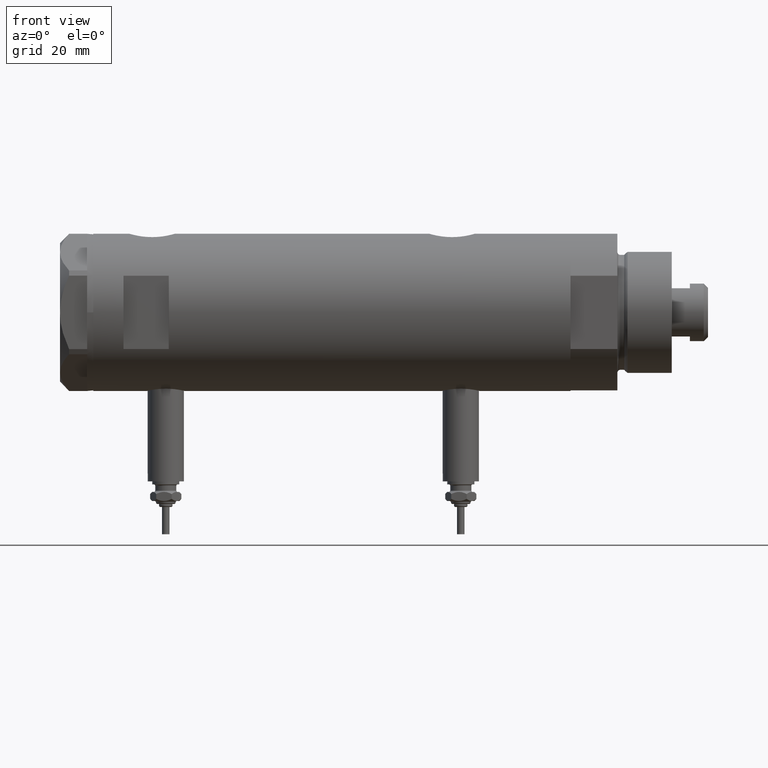
[diagram: clean part render]
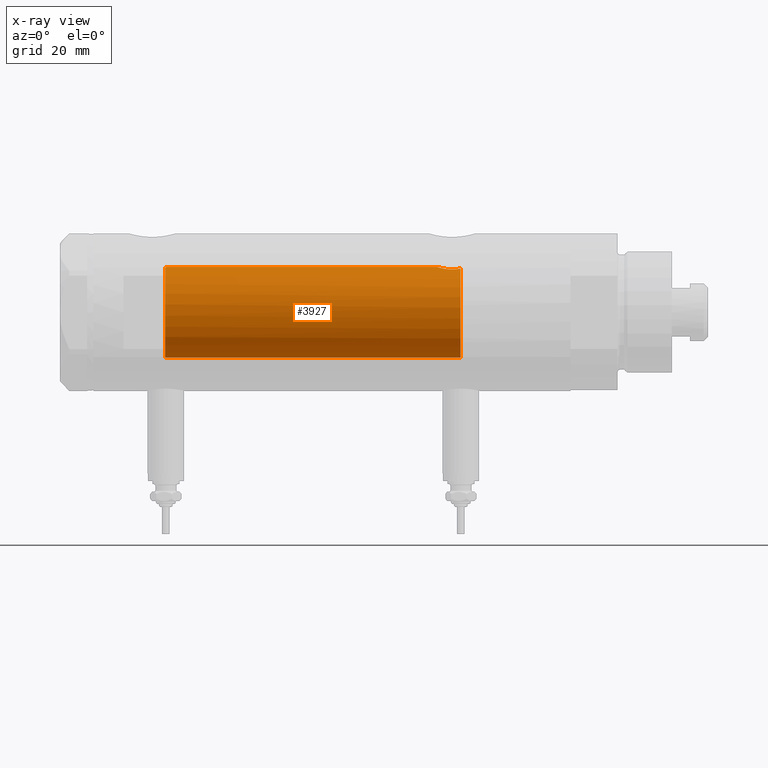
[diagram: x-ray — body ghosted, one internal face saturated and labeled with its STEP entity id]
A machine part, front view, then the same camera in x-ray: the body is ghosted and one INTERNAL B-rep face — a face not visible from any outside direction — is saturated and labeled: STEP entity #3927.
In plain terms, the highlighted cylindrical surface (partial cylindrical patch) has radius 15 mm, axis along (1, 0, -0).
Its self-contained STEP definition (entity closure, byte-faithful):
#87 = LINE ( 'NONE', #4946, #2174 ) ;
#161 = CARTESIAN_POINT ( 'NONE',  ( 14.30602371879161439, -4.510400617436904014, -41.58665028800272268 ) ) ;
#193 = CARTESIAN_POINT ( 'NONE',  ( 15.00000000000000000, -0.2216692655473431750, -34.88499999999999091 ) ) ;
#358 = CARTESIAN_POINT ( 'NONE',  ( -15.00000000000000000, 0.000000000000000000, 55.15000000000000568 ) ) ;
#454 = CARTESIAN_POINT ( 'NONE',  ( 0.000000000000000000, 0.000000000000000000, 55.15000000000000568 ) ) ;
#640 = CARTESIAN_POINT ( 'NONE',  ( 14.82638779339053947, -2.275571356824482638, 55.15000000000000568 ) ) ;
#651 = CARTESIAN_POINT ( 'NONE',  ( 14.72015646623405871, -2.909233045280601893, -35.82572079632733164 ) ) ;
#735 = VECTOR ( 'NONE', #5012, 1000.000000000000000 ) ;
#740 = CARTESIAN_POINT ( 'NONE',  ( 14.30772250772359833, -4.505024017690383076, -37.90010806953218037 ) ) ;
#1015 = ORIENTED_EDGE ( 'NONE', *, *, #5824, .F. ) ;
#1092 = CARTESIAN_POINT ( 'NONE',  ( 14.33349657381506681, -4.422893686125041413, -41.78827841538883092 ) ) ;
#1183 = CARTESIAN_POINT ( 'NONE',  ( 14.93900636919599911, -1.364886281976677607, 54.77622504971313333 ) ) ;
#1243 = AXIS2_PLACEMENT_3D ( 'NONE', #5477, #4522, #2089 ) ;
#1402 = VERTEX_POINT ( 'NONE', #3177 ) ;
#1564 = B_SPLINE_CURVE_WITH_KNOTS ( 'NONE', 3,
 ( #3548, #6079, #1696, #1092, #161, #3103, #1631, #3645, #3132, #1566, #4470, #3160, #3619, #5593, #4029, #740, #4093, #2618, #5978, #4572, #651, #2589, #1596, #3585, #5949, #6047, #5499, #5567, #193, #4506 ),
 .UNSPECIFIED., .F., .F.,
 ( 4, 2, 2, 2, 2, 2, 2, 2, 2, 2, 2, 2, 2, 2, 4 ),
 ( 0.004672505804584289359, 0.005337629501999303222, 0.006002753199414317953, 0.006667876896829330949, 0.007333000594244345680, 0.007998124291659358676, 0.008663247989074373406, 0.009328371686489388137, 0.009993495383904402868, 0.01132374277873441151, 0.01265399017356442016, 0.01331911387097942448, 0.01398423756839442880, 0.01464936126580943312, 0.01531448496322443745 ),
 .UNSPECIFIED. ) ;
#1566 = CARTESIAN_POINT ( 'NONE',  ( 14.18781489734108270, -4.868896704194245473, -39.85545969036063241 ) ) ;
#1590 = CARTESIAN_POINT ( 'NONE',  ( 14.85289483991917514, -2.102865829523695940, 55.05860377881607093 ) ) ;
#1596 = CARTESIAN_POINT ( 'NONE',  ( 14.84733308118440220, -2.144376633039216440, -35.37751912952715827 ) ) ;
#1631 = CARTESIAN_POINT ( 'NONE',  ( 14.23846660849503465, -4.718934182878722794, -40.95401121469808459 ) ) ;
#1641 = AXIS2_PLACEMENT_3D ( 'NONE', #3816, #2851, #1835 ) ;
#1696 = CARTESIAN_POINT ( 'NONE',  ( 14.39424372609267877, -4.221002267729138779, -42.17893131093288872 ) ) ;
#1756 = ORIENTED_EDGE ( 'NONE', *, *, #2279, .T. ) ;
#1820 = EDGE_LOOP ( 'NONE', ( #1015, #2955, #4494, #2489, #4662, #1756 ) ) ;
#1835 = DIRECTION ( 'NONE',  ( -1.000000000000000000, 0.000000000000000000, 0.000000000000000000 ) ) ;
#1860 = DIRECTION ( 'NONE',  ( 0.000000000000000000, 0.000000000000000000, 1.000000000000000000 ) ) ;
#2005 = VERTEX_POINT ( 'NONE', #5367 ) ;
#2037 = DIRECTION ( 'NONE',  ( -0.000000000000000000, -0.000000000000000000, -1.000000000000000000 ) ) ;
#2040 = CARTESIAN_POINT ( 'NONE',  ( 15.00000000000000178, -0.3999014018875943210, 54.58500000000000796 ) ) ;
#2089 = DIRECTION ( 'NONE',  ( -1.000000000000000000, 0.000000000000000000, 0.000000000000000000 ) ) ;
#2174 = VECTOR ( 'NONE', #2037, 1000.000000000000000 ) ;
#2235 = B_SPLINE_CURVE_WITH_KNOTS ( 'NONE', 3,
 ( #2926, #2040, #5108, #1183, #4119, #2584, #1590, #640 ),
 .UNSPECIFIED., .F., .F.,
 ( 4, 2, 2, 4 ),
 ( 0.000000000000000000, 0.001182100180564266828, 0.001773150270846399808, 0.002364200361128533222 ),
 .UNSPECIFIED. ) ;
#2279 = EDGE_CURVE ( 'NONE', #2426, #4213, #5503, .T. ) ;
#2426 = VERTEX_POINT ( 'NONE', #358 ) ;
#2489 = ORIENTED_EDGE ( 'NONE', *, *, #4128, .T. ) ;
#2584 = CARTESIAN_POINT ( 'NONE',  ( 14.87720562886504183, -1.924385875533401347, 54.97741675737692191 ) ) ;
#2589 = CARTESIAN_POINT ( 'NONE',  ( 14.81710879718117546, -2.343063746046468054, -35.48067662538952050 ) ) ;
#2618 = CARTESIAN_POINT ( 'NONE',  ( 14.42796883436190214, -4.108435602805831088, -37.10726922759031510 ) ) ;
#2652 = CARTESIAN_POINT ( 'NONE',  ( 14.82638779339053947, -2.275571356824482638, 55.15000000000000568 ) ) ;
#2660 = CIRCLE ( 'NONE', #1243, 15.00000000000000000 ) ;
#2739 = AXIS2_PLACEMENT_3D ( 'NONE', #454, #1860, #4343 ) ;
#2813 = CARTESIAN_POINT ( 'NONE',  ( 15.00000000000000000, 0.000000000000000000, 54.58500000000000085 ) ) ;
#2851 = DIRECTION ( 'NONE',  ( -0.000000000000000000, -0.000000000000000000, -1.000000000000000000 ) ) ;
#2926 = CARTESIAN_POINT ( 'NONE',  ( 15.00000000000000000, 0.000000000000000000, 54.58500000000000085 ) ) ;
#2955 = ORIENTED_EDGE ( 'NONE', *, *, #6274, .T. ) ;
#2997 = LINE ( 'NONE', #4084, #735 ) ;
#3011 = VERTEX_POINT ( 'NONE', #2813 ) ;
#3103 = CARTESIAN_POINT ( 'NONE',  ( 14.25856516724843992, -4.658255869285516937, -41.17044016644936733 ) ) ;
#3132 = CARTESIAN_POINT ( 'NONE',  ( 14.19797987272029438, -4.839174951492910104, -40.29741451501411120 ) ) ;
#3160 = CARTESIAN_POINT ( 'NONE',  ( 14.19858338301463441, -4.837406781463696070, -39.18614104090498529 ) ) ;
#3177 = CARTESIAN_POINT ( 'NONE',  ( 14.46277203719950855, -3.978470183374506863, -42.55000000000000426 ) ) ;
#3363 = CYLINDRICAL_SURFACE ( 'NONE', #1641, 15.00000000000000000 ) ;
#3548 = CARTESIAN_POINT ( 'NONE',  ( 14.46277203719950855, -3.978470183374506863, -42.55000000000000426 ) ) ;
#3585 = CARTESIAN_POINT ( 'NONE',  ( 14.90017778876744892, -1.739641523727902372, -35.20130925695126223 ) ) ;
#3619 = CARTESIAN_POINT ( 'NONE',  ( 14.20926245015526135, -4.806160851464706063, -38.96377327795616452 ) ) ;
#3645 = CARTESIAN_POINT ( 'NONE',  ( 14.20819413761015504, -4.809312895991456394, -40.51713251522166814 ) ) ;
#3816 = CARTESIAN_POINT ( 'NONE',  ( 0.000000000000000000, 0.000000000000000000, 78.95000000000000284 ) ) ;
#3927 = ADVANCED_FACE ( 'NONE', ( #6181 ), #3363, .F. ) ;
#4029 = CARTESIAN_POINT ( 'NONE',  ( 14.25977760983849052, -4.654557688538888627, -38.31736805897653397 ) ) ;
#4084 = CARTESIAN_POINT ( 'NONE',  ( -15.00000000000000000, 0.000000000000000000, 78.95000000000000284 ) ) ;
#4093 = CARTESIAN_POINT ( 'NONE',  ( 14.33594561531104006, -4.414979644548145288, -37.69453393419243525 ) ) ;
#4119 = CARTESIAN_POINT ( 'NONE',  ( 14.92029983160078288, -1.555365312915176768, 54.83609703141411984 ) ) ;
#4128 = EDGE_CURVE ( 'NONE', #1402, #2005, #2660, .T. ) ;
#4200 = EDGE_CURVE ( 'NONE', #1402, #4650, #1564, .T. ) ;
#4213 = VERTEX_POINT ( 'NONE', #2652 ) ;
#4343 = DIRECTION ( 'NONE',  ( 1.000000000000000000, 0.000000000000000000, 0.000000000000000000 ) ) ;
#4470 = CARTESIAN_POINT ( 'NONE',  ( 14.18786347641749757, -4.868757996482117711, -39.63322300400292875 ) ) ;
#4494 = ORIENTED_EDGE ( 'NONE', *, *, #4200, .F. ) ;
#4506 = CARTESIAN_POINT ( 'NONE',  ( 15.00000000000000000, 5.959273468635536151E-16, -34.88499999999999801 ) ) ;
#4522 = DIRECTION ( 'NONE',  ( 0.000000000000000000, 0.000000000000000000, -1.000000000000000000 ) ) ;
#4564 = CARTESIAN_POINT ( 'NONE',  ( 15.00000000000000000, 5.959273468635536151E-16, -34.88499999999999801 ) ) ;
#4572 = CARTESIAN_POINT ( 'NONE',  ( 14.64727859494137263, -3.248701865452407578, -36.10174013696653361 ) ) ;
#4598 = EDGE_CURVE ( 'NONE', #2426, #2005, #2997, .T. ) ;
#4650 = VERTEX_POINT ( 'NONE', #4564 ) ;
#4662 = ORIENTED_EDGE ( 'NONE', *, *, #4598, .F. ) ;
#4946 = CARTESIAN_POINT ( 'NONE',  ( 15.00000000000000000, 1.836970198721029589E-15, 78.95000000000000284 ) ) ;
#5012 = DIRECTION ( 'NONE',  ( -0.000000000000000000, -0.000000000000000000, -1.000000000000000000 ) ) ;
#5108 = CARTESIAN_POINT ( 'NONE',  ( 14.98404828787190723, -0.7909490205761879889, 54.63356230794191504 ) ) ;
#5367 = CARTESIAN_POINT ( 'NONE',  ( -15.00000000000000000, 0.000000000000000000, -42.55000000000000426 ) ) ;
#5477 = CARTESIAN_POINT ( 'NONE',  ( 0.000000000000000000, 0.000000000000000000, -42.55000000000000426 ) ) ;
#5499 = CARTESIAN_POINT ( 'NONE',  ( 14.97537530859971966, -0.8874117095427771496, -34.96137464055828303 ) ) ;
#5503 = CIRCLE ( 'NONE', #2739, 15.00000000000000000 ) ;
#5567 = CARTESIAN_POINT ( 'NONE',  ( 14.99508877558421993, -0.4434836953032583184, -34.90007684727662252 ) ) ;
#5593 = CARTESIAN_POINT ( 'NONE',  ( 14.23984499268011028, -4.714778477509579346, -38.53008258614764969 ) ) ;
#5824 = EDGE_CURVE ( 'NONE', #3011, #4213, #2235, .T. ) ;
#5949 = CARTESIAN_POINT ( 'NONE',  ( 14.92307637240703677, -1.532123959568890026, -35.12726557582075770 ) ) ;
#5978 = CARTESIAN_POINT ( 'NONE',  ( 14.49994286062941562, -3.853373987417223479, -36.74743896782912600 ) ) ;
#6047 = CARTESIAN_POINT ( 'NONE',  ( 14.96064712090283777, -1.106639041422191827, -35.00738179736369915 ) ) ;
#6079 = CARTESIAN_POINT ( 'NONE',  ( 14.42775250319760083, -4.105775281508734054, -42.36911445102907692 ) ) ;
#6181 = FACE_OUTER_BOUND ( 'NONE', #1820, .T. ) ;
#6274 = EDGE_CURVE ( 'NONE', #3011, #4650, #87, .T. ) ;